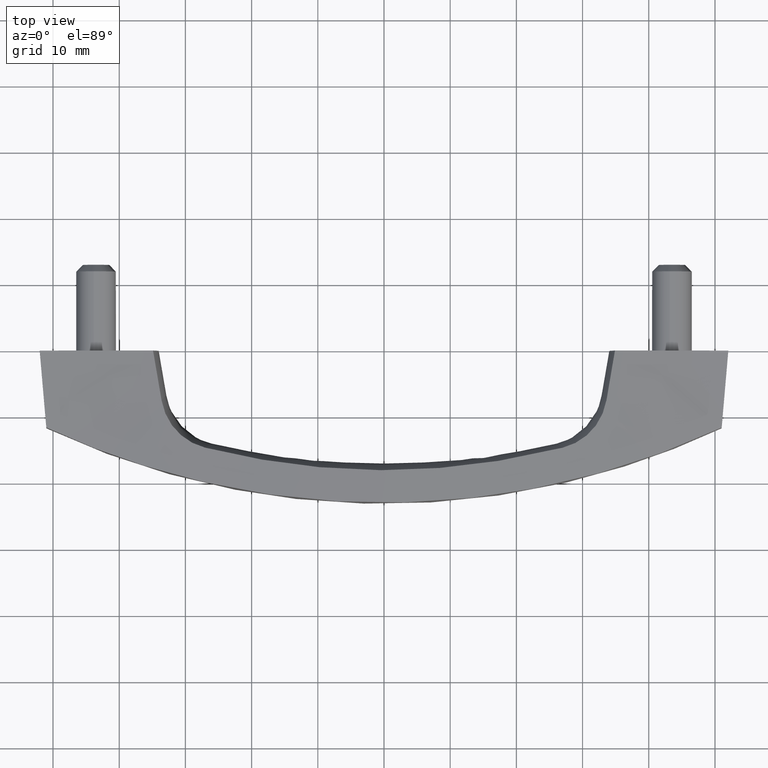
[diagram: clean part render]
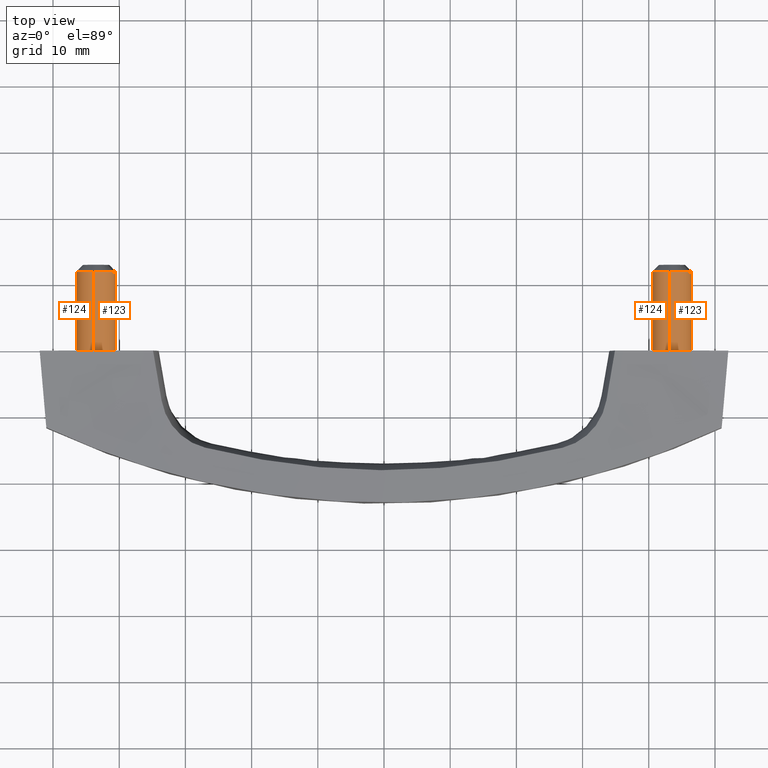
[diagram: same view with one multi-face feature highlighted, each face labeled with its STEP entity id]
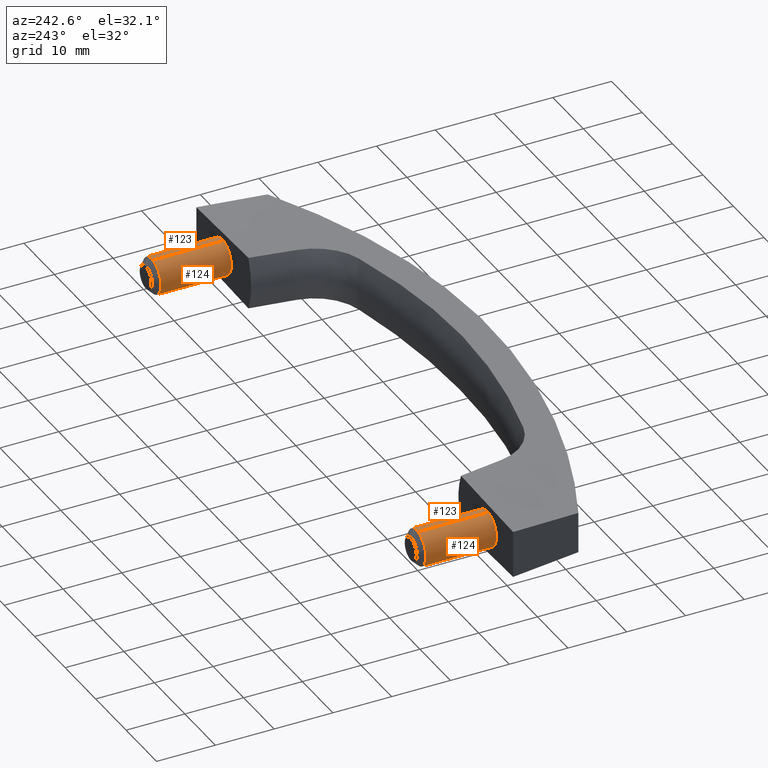
[diagram: same view with one multi-face feature highlighted, each face labeled with its STEP entity id]
A machine part, top view. The highlighted faces form ONE feature: a constant-radius fillet chain: 4 tangent blend faces with common blend radius 3 mm. The faces share edges in the B-rep.
A second angle (auxiliary view) of the same feature is appended — it is thin or edge-on in the first view.
Their STEP definitions:
[1] entity #123 (Cylinder):
#123=ADVANCED_FACE('',(#166),#165,.T.);
#165=CYLINDRICAL_SURFACE('',#400,3.00000000000E+00);
#166=FACE_OUTER_BOUND('',#401,.T.);
#397=CARTESIAN_POINT('',(4.35005000000E+01,3.98391948568E-14,8.50000000000E+00));
#398=DIRECTION('',(3.47470881162E-14,3.83207449485E-15,1.00000000000E+00));
#399=DIRECTION('',(1.18034234657E-01,-9.93009526364E-01,-2.96059473238E-16));
#400=AXIS2_PLACEMENT_3D('',#397,#398,#399);
#401=EDGE_LOOP('',(#681,#682,#683,#684,#685));
#681=ORIENTED_EDGE('',*,*,#801,.T.);
#682=ORIENTED_EDGE('',*,*,#807,.F.);
#683=ORIENTED_EDGE('',*,*,#808,.F.);
#684=ORIENTED_EDGE('',*,*,#809,.F.);
#685=ORIENTED_EDGE('',*,*,#810,.T.);
#801=EDGE_CURVE('',#871,#863,#872,.T.);
#807=EDGE_CURVE('',#912,#863,#913,.T.);
#808=EDGE_CURVE('',#919,#912,#920,.T.);
#809=EDGE_CURVE('',#926,#919,#927,.T.);
#810=EDGE_CURVE('',#926,#871,#933,.T.);
#863=VERTEX_POINT('',#1286);
#871=VERTEX_POINT('',#1292);
#872=CIRCLE('',#1296,3.00000000000E+00);
#912=VERTEX_POINT('',#1321);
#913=(BOUNDED_CURVE() B_SPLINE_CURVE(1,(#1322,#1323),.UNSPECIFIED.,.F.,.F.) B_SPLINE_CURVE_WITH_KNOTS((2,2),(8.33333328360E-02,9.16666665505E-01),.UNSPECIFIED.) CURVE() GEOMETRIC_REPRESENTATION_ITEM() RATIONAL_B_SPLINE_CURVE((1.00000000000E+00,1.00000000000E+00)) REPRESENTATION_ITEM('') );
#919=VERTEX_POINT('',#1324);
#920=CIRCLE('',#1328,2.99999999980E+00);
#926=VERTEX_POINT('',#1329);
#927=CIRCLE('',#1333,3.00000000011E+00);
#933=(BOUNDED_CURVE() B_SPLINE_CURVE(1,(#1334,#1335),.UNSPECIFIED.,.F.,.F.) B_SPLINE_CURVE_WITH_KNOTS((2,2),(8.33333333358E-02,9.16666666667E-01),.UNSPECIFIED.) CURVE() GEOMETRIC_REPRESENTATION_ITEM() RATIONAL_B_SPLINE_CURVE((7.50000000000E-01,7.50000000000E-01)) REPRESENTATION_ITEM('') );
#1286=CARTESIAN_POINT('',(4.38546016146E+01,-2.97902870858E+00,8.00000000000E+00));
#1292=CARTESIAN_POINT('',(4.31458824160E+01,2.97896733268E+00,8.00000000000E+00));
#1293=CARTESIAN_POINT('',(4.35005000000E+01,-2.44249065418E-15,8.00000000000E+00));
#1294=DIRECTION('',(0.00000000000E+00,0.00000000000E+00,-1.00000000000E+00));
#1295=DIRECTION('',(-1.00000000000E+00,6.93889390391E-16,0.00000000000E+00));
#1296=AXIS2_PLACEMENT_3D('',#1293,#1294,#1295);
#1321=CARTESIAN_POINT('',(4.38546027095E+01,-2.97902857818E+00,-1.20000000000E+01));
#1322=CARTESIAN_POINT('',(4.38546027040E+01,-2.97902857909E+00,-1.20000000120E+01));
#1323=CARTESIAN_POINT('',(4.38546027040E+01,-2.97902857909E+00,7.99999997211E+00));
#1324=CARTESIAN_POINT('',(4.60296201465E+01,1.61355238048E+00,-1.20000000000E+01));
#1325=CARTESIAN_POINT('',(4.35005000002E+01,7.48353601310E-11,-1.19999999999E+01));
#1326=DIRECTION('',(-1.81639371580E-11,1.35820560085E-15,-1.00000000000E+00));
#1327=DIRECTION('',(-8.43040048828E-01,-5.37850793503E-01,1.53121959567E-11));
#1328=AXIS2_PLACEMENT_3D('',#1325,#1326,#1327);
#1329=CARTESIAN_POINT('',(4.31465111065E+01,2.97904210498E+00,-1.20000000000E+01));
#1330=CARTESIAN_POINT('',(4.35005000000E+01,-1.14771747661E-10,-1.20000000000E+01));
#1331=DIRECTION('',(7.03026464498E-13,-5.98365769074E-12,-1.00000000000E+00));
#1332=DIRECTION('',(1.18034234749E-01,-9.93009526353E-01,6.02481028008E-12));
#1333=AXIS2_PLACEMENT_3D('',#1330,#1331,#1332);
#1334=CARTESIAN_POINT('',(4.31463972960E+01,2.97902857909E+00,-1.20000000000E+01));
#1335=CARTESIAN_POINT('',(4.31463972960E+01,2.97902857909E+00,8.00000000000E+00));
[2] entity #124 (Cylinder):
#124=ADVANCED_FACE('',(#176),#175,.T.);
#175=CYLINDRICAL_SURFACE('',#405,3.00000000000E+00);
#176=FACE_OUTER_BOUND('',#406,.T.);
#402=CARTESIAN_POINT('',(4.35005000000E+01,3.98391948568E-14,8.50000000000E+00));
#403=DIRECTION('',(3.47470881162E-14,3.83207449485E-15,1.00000000000E+00));
#404=DIRECTION('',(1.18034234657E-01,-9.93009526364E-01,-2.96059473238E-16));
#405=AXIS2_PLACEMENT_3D('',#402,#403,#404);
#406=EDGE_LOOP('',(#686,#687,#688,#689,#690,#691,#692,#693));
#686=ORIENTED_EDGE('',*,*,#811,.F.);
#687=ORIENTED_EDGE('',*,*,#812,.F.);
#688=ORIENTED_EDGE('',*,*,#813,.F.);
#689=ORIENTED_EDGE('',*,*,#814,.F.);
#690=ORIENTED_EDGE('',*,*,#807,.T.);
#691=ORIENTED_EDGE('',*,*,#800,.T.);
#692=ORIENTED_EDGE('',*,*,#802,.T.);
#693=ORIENTED_EDGE('',*,*,#810,.F.);
#800=EDGE_CURVE('',#863,#864,#865,.T.);
#802=EDGE_CURVE('',#864,#871,#878,.T.);
#807=EDGE_CURVE('',#912,#863,#913,.T.);
#810=EDGE_CURVE('',#926,#871,#933,.T.);
#811=EDGE_CURVE('',#939,#926,#940,.T.);
#812=EDGE_CURVE('',#946,#939,#947,.T.);
#813=EDGE_CURVE('',#953,#946,#954,.T.);
#814=EDGE_CURVE('',#912,#953,#960,.T.);
#863=VERTEX_POINT('',#1286);
#864=VERTEX_POINT('',#1287);
#865=CIRCLE('',#1291,3.00000000000E+00);
#871=VERTEX_POINT('',#1292);
#878=CIRCLE('',#1300,3.00000000000E+00);
#912=VERTEX_POINT('',#1321);
#913=(BOUNDED_CURVE() B_SPLINE_CURVE(1,(#1322,#1323),.UNSPECIFIED.,.F.,.F.) B_SPLINE_CURVE_WITH_KNOTS((2,2),(8.33333328360E-02,9.16666665505E-01),.UNSPECIFIED.) CURVE() GEOMETRIC_REPRESENTATION_ITEM() RATIONAL_B_SPLINE_CURVE((1.00000000000E+00,1.00000000000E+00)) REPRESENTATION_ITEM('') );
#926=VERTEX_POINT('',#1329);
#933=(BOUNDED_CURVE() B_SPLINE_CURVE(1,(#1334,#1335),.UNSPECIFIED.,.F.,.F.) B_SPLINE_CURVE_WITH_KNOTS((2,2),(8.33333333358E-02,9.16666666667E-01),.UNSPECIFIED.) CURVE() GEOMETRIC_REPRESENTATION_ITEM() RATIONAL_B_SPLINE_CURVE((7.50000000000E-01,7.50000000000E-01)) REPRESENTATION_ITEM('') );
#939=VERTEX_POINT('',#1336);
#940=CIRCLE('',#1340,3.00000000011E+00);
#946=VERTEX_POINT('',#1341);
#947=CIRCLE('',#1345,3.00000000011E+00);
#953=VERTEX_POINT('',#1346);
#954=CIRCLE('',#1350,3.00000043585E+00);
#960=CIRCLE('',#1354,2.99999999980E+00);
#1286=CARTESIAN_POINT('',(4.38546016146E+01,-2.97902870858E+00,8.00000000000E+00));
#1287=CARTESIAN_POINT('',(4.05005000000E+01,-1.44328993201E-15,8.00000000000E+00));
#1288=CARTESIAN_POINT('',(4.35005000000E+01,-2.44249065418E-15,8.00000000000E+00));
#1289=DIRECTION('',(0.00000000000E+00,0.00000000000E+00,-1.00000000000E+00));
#1290=DIRECTION('',(-1.00000000000E+00,6.93889390391E-16,0.00000000000E+00));
#1291=AXIS2_PLACEMENT_3D('',#1288,#1289,#1290);
#1292=CARTESIAN_POINT('',(4.31458824160E+01,2.97896733268E+00,8.00000000000E+00));
#1297=CARTESIAN_POINT('',(4.35005000000E+01,-2.44249065418E-15,8.00000000000E+00));
#1298=DIRECTION('',(0.00000000000E+00,0.00000000000E+00,-1.00000000000E+00));
#1299=DIRECTION('',(-1.00000000000E+00,6.93889390391E-16,0.00000000000E+00));
#1300=AXIS2_PLACEMENT_3D('',#1297,#1298,#1299);
#1321=CARTESIAN_POINT('',(4.38546027095E+01,-2.97902857818E+00,-1.20000000000E+01));
#1322=CARTESIAN_POINT('',(4.38546027040E+01,-2.97902857909E+00,-1.20000000120E+01));
#1323=CARTESIAN_POINT('',(4.38546027040E+01,-2.97902857909E+00,7.99999997211E+00));
#1329=CARTESIAN_POINT('',(4.31465111065E+01,2.97904210498E+00,-1.20000000000E+01));
#1334=CARTESIAN_POINT('',(4.31463972960E+01,2.97902857909E+00,-1.20000000000E+01));
#1335=CARTESIAN_POINT('',(4.31463972960E+01,2.97902857909E+00,8.00000000000E+00));
#1336=CARTESIAN_POINT('',(4.09713810357E+01,-1.61355423394E+00,-1.20000000000E+01));
#1337=CARTESIAN_POINT('',(4.35005000000E+01,-1.14771747661E-10,-1.20000000000E+01));
#1338=DIRECTION('',(7.03026464498E-13,-5.98365769074E-12,-1.00000000000E+00));
#1339=DIRECTION('',(1.18034234749E-01,-9.93009526353E-01,6.02481028008E-12));
#1340=AXIS2_PLACEMENT_3D('',#1337,#1338,#1339);
#1341=CARTESIAN_POINT('',(4.36836456187E+01,-2.99440439526E+00,-1.20000000000E+01));
#1342=CARTESIAN_POINT('',(4.35005000000E+01,-1.14771747661E-10,-1.20000000000E+01));
#1343=DIRECTION('',(7.03026464498E-13,-5.98365769074E-12,-1.00000000000E+00));
#1344=DIRECTION('',(1.18034234749E-01,-9.93009526353E-01,6.02481028008E-12));
#1345=AXIS2_PLACEMENT_3D('',#1342,#1343,#1344);
#1346=CARTESIAN_POINT('',(4.37358772877E+01,-2.99075200123E+00,-1.19999999999E+01));
#1347=CARTESIAN_POINT('',(4.35004999736E+01,4.35055319326E-07,-1.19999995381E+01));
#1348=DIRECTION('',(-9.39940247319E-09,1.53680797474E-07,-1.00000000000E+00));
#1349=DIRECTION('',(-7.84590933015E-02,9.96917333924E-01,1.53944519489E-07));
#1350=AXIS2_PLACEMENT_3D('',#1347,#1348,#1349);
#1351=CARTESIAN_POINT('',(4.35005000002E+01,7.48353601310E-11,-1.19999999999E+01));
#1352=DIRECTION('',(-1.81639371580E-11,1.35820560085E-15,-1.00000000000E+00));
#1353=DIRECTION('',(-8.43040048828E-01,-5.37850793503E-01,1.53121959567E-11));
#1354=AXIS2_PLACEMENT_3D('',#1351,#1352,#1353);
[3] entity #124 (Cylinder):
#124=ADVANCED_FACE('',(#176),#175,.T.);
#175=CYLINDRICAL_SURFACE('',#405,3.00000000000E+00);
#176=FACE_OUTER_BOUND('',#406,.T.);
#402=CARTESIAN_POINT('',(4.35005000000E+01,3.98391948568E-14,8.50000000000E+00));
#403=DIRECTION('',(3.47470881162E-14,3.83207449485E-15,1.00000000000E+00));
#404=DIRECTION('',(1.18034234657E-01,-9.93009526364E-01,-2.96059473238E-16));
#405=AXIS2_PLACEMENT_3D('',#402,#403,#404);
#406=EDGE_LOOP('',(#686,#687,#688,#689,#690,#691,#692,#693));
#686=ORIENTED_EDGE('',*,*,#811,.F.);
#687=ORIENTED_EDGE('',*,*,#812,.F.);
#688=ORIENTED_EDGE('',*,*,#813,.F.);
#689=ORIENTED_EDGE('',*,*,#814,.F.);
#690=ORIENTED_EDGE('',*,*,#807,.T.);
#691=ORIENTED_EDGE('',*,*,#800,.T.);
#692=ORIENTED_EDGE('',*,*,#802,.T.);
#693=ORIENTED_EDGE('',*,*,#810,.F.);
#800=EDGE_CURVE('',#863,#864,#865,.T.);
#802=EDGE_CURVE('',#864,#871,#878,.T.);
#807=EDGE_CURVE('',#912,#863,#913,.T.);
#810=EDGE_CURVE('',#926,#871,#933,.T.);
#811=EDGE_CURVE('',#939,#926,#940,.T.);
#812=EDGE_CURVE('',#946,#939,#947,.T.);
#813=EDGE_CURVE('',#953,#946,#954,.T.);
#814=EDGE_CURVE('',#912,#953,#960,.T.);
#863=VERTEX_POINT('',#1286);
#864=VERTEX_POINT('',#1287);
#865=CIRCLE('',#1291,3.00000000000E+00);
#871=VERTEX_POINT('',#1292);
#878=CIRCLE('',#1300,3.00000000000E+00);
#912=VERTEX_POINT('',#1321);
#913=(BOUNDED_CURVE() B_SPLINE_CURVE(1,(#1322,#1323),.UNSPECIFIED.,.F.,.F.) B_SPLINE_CURVE_WITH_KNOTS((2,2),(8.33333328360E-02,9.16666665505E-01),.UNSPECIFIED.) CURVE() GEOMETRIC_REPRESENTATION_ITEM() RATIONAL_B_SPLINE_CURVE((1.00000000000E+00,1.00000000000E+00)) REPRESENTATION_ITEM('') );
#926=VERTEX_POINT('',#1329);
#933=(BOUNDED_CURVE() B_SPLINE_CURVE(1,(#1334,#1335),.UNSPECIFIED.,.F.,.F.) B_SPLINE_CURVE_WITH_KNOTS((2,2),(8.33333333358E-02,9.16666666667E-01),.UNSPECIFIED.) CURVE() GEOMETRIC_REPRESENTATION_ITEM() RATIONAL_B_SPLINE_CURVE((7.50000000000E-01,7.50000000000E-01)) REPRESENTATION_ITEM('') );
#939=VERTEX_POINT('',#1336);
#940=CIRCLE('',#1340,3.00000000011E+00);
#946=VERTEX_POINT('',#1341);
#947=CIRCLE('',#1345,3.00000000011E+00);
#953=VERTEX_POINT('',#1346);
#954=CIRCLE('',#1350,3.00000043585E+00);
#960=CIRCLE('',#1354,2.99999999980E+00);
#1286=CARTESIAN_POINT('',(4.38546016146E+01,-2.97902870858E+00,8.00000000000E+00));
#1287=CARTESIAN_POINT('',(4.05005000000E+01,-1.44328993201E-15,8.00000000000E+00));
#1288=CARTESIAN_POINT('',(4.35005000000E+01,-2.44249065418E-15,8.00000000000E+00));
#1289=DIRECTION('',(0.00000000000E+00,0.00000000000E+00,-1.00000000000E+00));
#1290=DIRECTION('',(-1.00000000000E+00,6.93889390391E-16,0.00000000000E+00));
#1291=AXIS2_PLACEMENT_3D('',#1288,#1289,#1290);
#1292=CARTESIAN_POINT('',(4.31458824160E+01,2.97896733268E+00,8.00000000000E+00));
#1297=CARTESIAN_POINT('',(4.35005000000E+01,-2.44249065418E-15,8.00000000000E+00));
#1298=DIRECTION('',(0.00000000000E+00,0.00000000000E+00,-1.00000000000E+00));
#1299=DIRECTION('',(-1.00000000000E+00,6.93889390391E-16,0.00000000000E+00));
#1300=AXIS2_PLACEMENT_3D('',#1297,#1298,#1299);
#1321=CARTESIAN_POINT('',(4.38546027095E+01,-2.97902857818E+00,-1.20000000000E+01));
#1322=CARTESIAN_POINT('',(4.38546027040E+01,-2.97902857909E+00,-1.20000000120E+01));
#1323=CARTESIAN_POINT('',(4.38546027040E+01,-2.97902857909E+00,7.99999997211E+00));
#1329=CARTESIAN_POINT('',(4.31465111065E+01,2.97904210498E+00,-1.20000000000E+01));
#1334=CARTESIAN_POINT('',(4.31463972960E+01,2.97902857909E+00,-1.20000000000E+01));
#1335=CARTESIAN_POINT('',(4.31463972960E+01,2.97902857909E+00,8.00000000000E+00));
#1336=CARTESIAN_POINT('',(4.09713810357E+01,-1.61355423394E+00,-1.20000000000E+01));
#1337=CARTESIAN_POINT('',(4.35005000000E+01,-1.14771747661E-10,-1.20000000000E+01));
#1338=DIRECTION('',(7.03026464498E-13,-5.98365769074E-12,-1.00000000000E+00));
#1339=DIRECTION('',(1.18034234749E-01,-9.93009526353E-01,6.02481028008E-12));
#1340=AXIS2_PLACEMENT_3D('',#1337,#1338,#1339);
#1341=CARTESIAN_POINT('',(4.36836456187E+01,-2.99440439526E+00,-1.20000000000E+01));
#1342=CARTESIAN_POINT('',(4.35005000000E+01,-1.14771747661E-10,-1.20000000000E+01));
#1343=DIRECTION('',(7.03026464498E-13,-5.98365769074E-12,-1.00000000000E+00));
#1344=DIRECTION('',(1.18034234749E-01,-9.93009526353E-01,6.02481028008E-12));
#1345=AXIS2_PLACEMENT_3D('',#1342,#1343,#1344);
#1346=CARTESIAN_POINT('',(4.37358772877E+01,-2.99075200123E+00,-1.19999999999E+01));
#1347=CARTESIAN_POINT('',(4.35004999736E+01,4.35055319326E-07,-1.19999995381E+01));
#1348=DIRECTION('',(-9.39940247319E-09,1.53680797474E-07,-1.00000000000E+00));
#1349=DIRECTION('',(-7.84590933015E-02,9.96917333924E-01,1.53944519489E-07));
#1350=AXIS2_PLACEMENT_3D('',#1347,#1348,#1349);
#1351=CARTESIAN_POINT('',(4.35005000002E+01,7.48353601310E-11,-1.19999999999E+01));
#1352=DIRECTION('',(-1.81639371580E-11,1.35820560085E-15,-1.00000000000E+00));
#1353=DIRECTION('',(-8.43040048828E-01,-5.37850793503E-01,1.53121959567E-11));
#1354=AXIS2_PLACEMENT_3D('',#1351,#1352,#1353);
[4] entity #123 (Cylinder):
#123=ADVANCED_FACE('',(#166),#165,.T.);
#165=CYLINDRICAL_SURFACE('',#400,3.00000000000E+00);
#166=FACE_OUTER_BOUND('',#401,.T.);
#397=CARTESIAN_POINT('',(4.35005000000E+01,3.98391948568E-14,8.50000000000E+00));
#398=DIRECTION('',(3.47470881162E-14,3.83207449485E-15,1.00000000000E+00));
#399=DIRECTION('',(1.18034234657E-01,-9.93009526364E-01,-2.96059473238E-16));
#400=AXIS2_PLACEMENT_3D('',#397,#398,#399);
#401=EDGE_LOOP('',(#681,#682,#683,#684,#685));
#681=ORIENTED_EDGE('',*,*,#801,.T.);
#682=ORIENTED_EDGE('',*,*,#807,.F.);
#683=ORIENTED_EDGE('',*,*,#808,.F.);
#684=ORIENTED_EDGE('',*,*,#809,.F.);
#685=ORIENTED_EDGE('',*,*,#810,.T.);
#801=EDGE_CURVE('',#871,#863,#872,.T.);
#807=EDGE_CURVE('',#912,#863,#913,.T.);
#808=EDGE_CURVE('',#919,#912,#920,.T.);
#809=EDGE_CURVE('',#926,#919,#927,.T.);
#810=EDGE_CURVE('',#926,#871,#933,.T.);
#863=VERTEX_POINT('',#1286);
#871=VERTEX_POINT('',#1292);
#872=CIRCLE('',#1296,3.00000000000E+00);
#912=VERTEX_POINT('',#1321);
#913=(BOUNDED_CURVE() B_SPLINE_CURVE(1,(#1322,#1323),.UNSPECIFIED.,.F.,.F.) B_SPLINE_CURVE_WITH_KNOTS((2,2),(8.33333328360E-02,9.16666665505E-01),.UNSPECIFIED.) CURVE() GEOMETRIC_REPRESENTATION_ITEM() RATIONAL_B_SPLINE_CURVE((1.00000000000E+00,1.00000000000E+00)) REPRESENTATION_ITEM('') );
#919=VERTEX_POINT('',#1324);
#920=CIRCLE('',#1328,2.99999999980E+00);
#926=VERTEX_POINT('',#1329);
#927=CIRCLE('',#1333,3.00000000011E+00);
#933=(BOUNDED_CURVE() B_SPLINE_CURVE(1,(#1334,#1335),.UNSPECIFIED.,.F.,.F.) B_SPLINE_CURVE_WITH_KNOTS((2,2),(8.33333333358E-02,9.16666666667E-01),.UNSPECIFIED.) CURVE() GEOMETRIC_REPRESENTATION_ITEM() RATIONAL_B_SPLINE_CURVE((7.50000000000E-01,7.50000000000E-01)) REPRESENTATION_ITEM('') );
#1286=CARTESIAN_POINT('',(4.38546016146E+01,-2.97902870858E+00,8.00000000000E+00));
#1292=CARTESIAN_POINT('',(4.31458824160E+01,2.97896733268E+00,8.00000000000E+00));
#1293=CARTESIAN_POINT('',(4.35005000000E+01,-2.44249065418E-15,8.00000000000E+00));
#1294=DIRECTION('',(0.00000000000E+00,0.00000000000E+00,-1.00000000000E+00));
#1295=DIRECTION('',(-1.00000000000E+00,6.93889390391E-16,0.00000000000E+00));
#1296=AXIS2_PLACEMENT_3D('',#1293,#1294,#1295);
#1321=CARTESIAN_POINT('',(4.38546027095E+01,-2.97902857818E+00,-1.20000000000E+01));
#1322=CARTESIAN_POINT('',(4.38546027040E+01,-2.97902857909E+00,-1.20000000120E+01));
#1323=CARTESIAN_POINT('',(4.38546027040E+01,-2.97902857909E+00,7.99999997211E+00));
#1324=CARTESIAN_POINT('',(4.60296201465E+01,1.61355238048E+00,-1.20000000000E+01));
#1325=CARTESIAN_POINT('',(4.35005000002E+01,7.48353601310E-11,-1.19999999999E+01));
#1326=DIRECTION('',(-1.81639371580E-11,1.35820560085E-15,-1.00000000000E+00));
#1327=DIRECTION('',(-8.43040048828E-01,-5.37850793503E-01,1.53121959567E-11));
#1328=AXIS2_PLACEMENT_3D('',#1325,#1326,#1327);
#1329=CARTESIAN_POINT('',(4.31465111065E+01,2.97904210498E+00,-1.20000000000E+01));
#1330=CARTESIAN_POINT('',(4.35005000000E+01,-1.14771747661E-10,-1.20000000000E+01));
#1331=DIRECTION('',(7.03026464498E-13,-5.98365769074E-12,-1.00000000000E+00));
#1332=DIRECTION('',(1.18034234749E-01,-9.93009526353E-01,6.02481028008E-12));
#1333=AXIS2_PLACEMENT_3D('',#1330,#1331,#1332);
#1334=CARTESIAN_POINT('',(4.31463972960E+01,2.97902857909E+00,-1.20000000000E+01));
#1335=CARTESIAN_POINT('',(4.31463972960E+01,2.97902857909E+00,8.00000000000E+00));